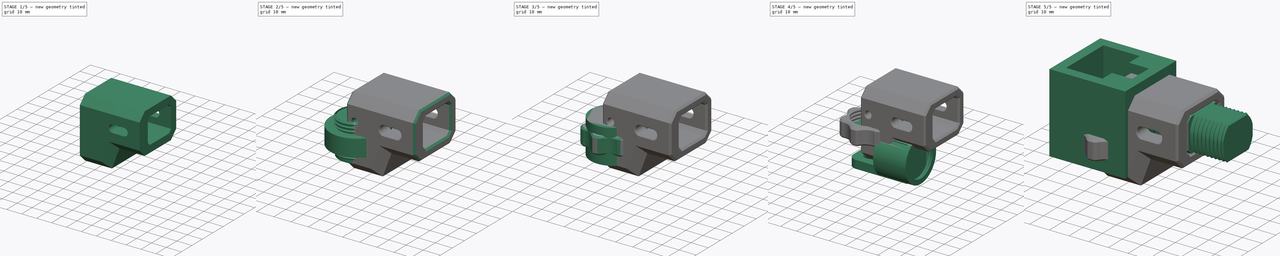
[diagram: build sequence overview — one tinted view per stage of 5, left to right]
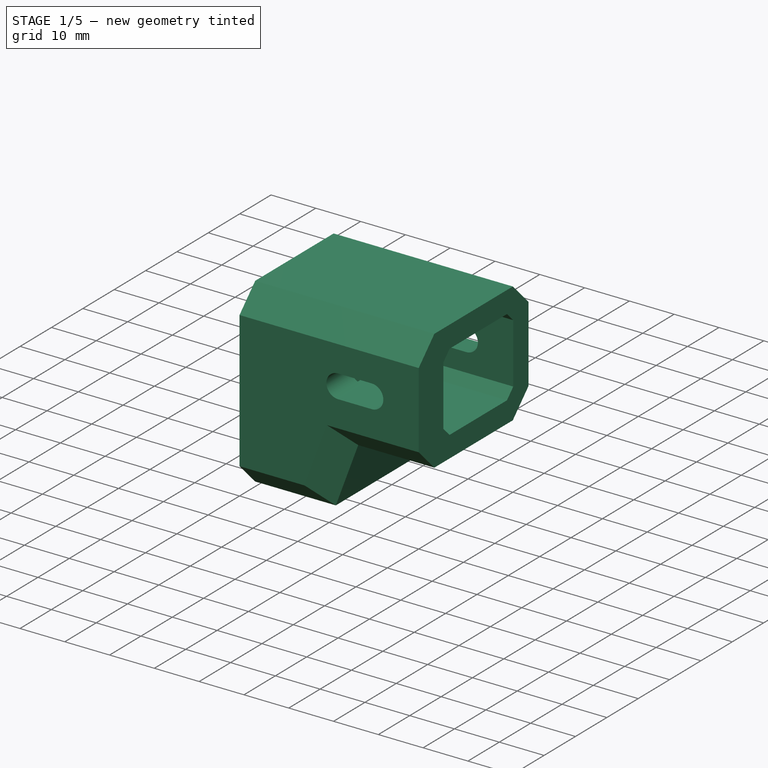
[diagram: stage 1 of 5 — iso view after this stage's code; geometry added in this stage tinted green]
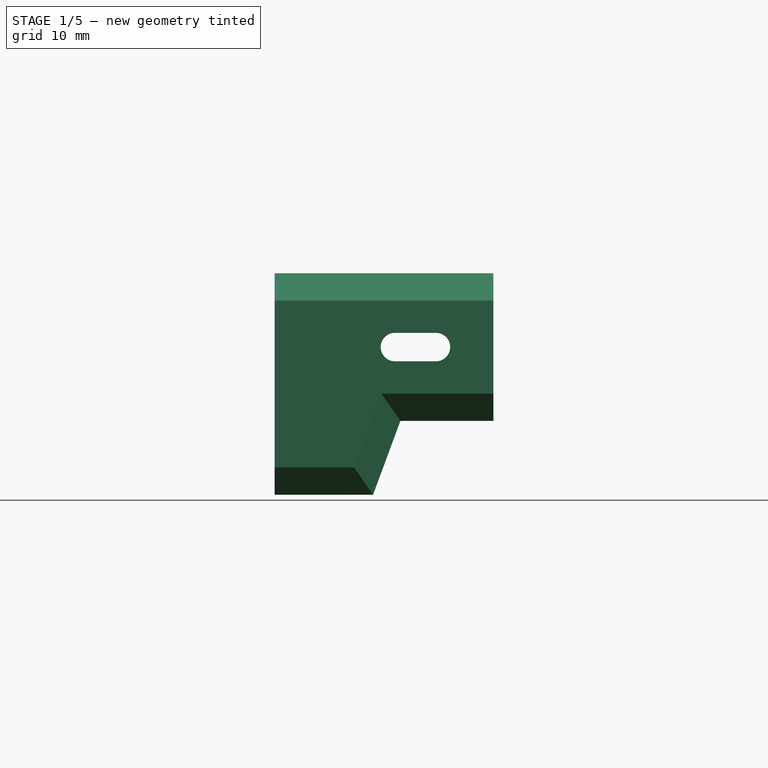
[diagram: stage 1 of 5 — front view after this stage's code; geometry added in this stage tinted green]
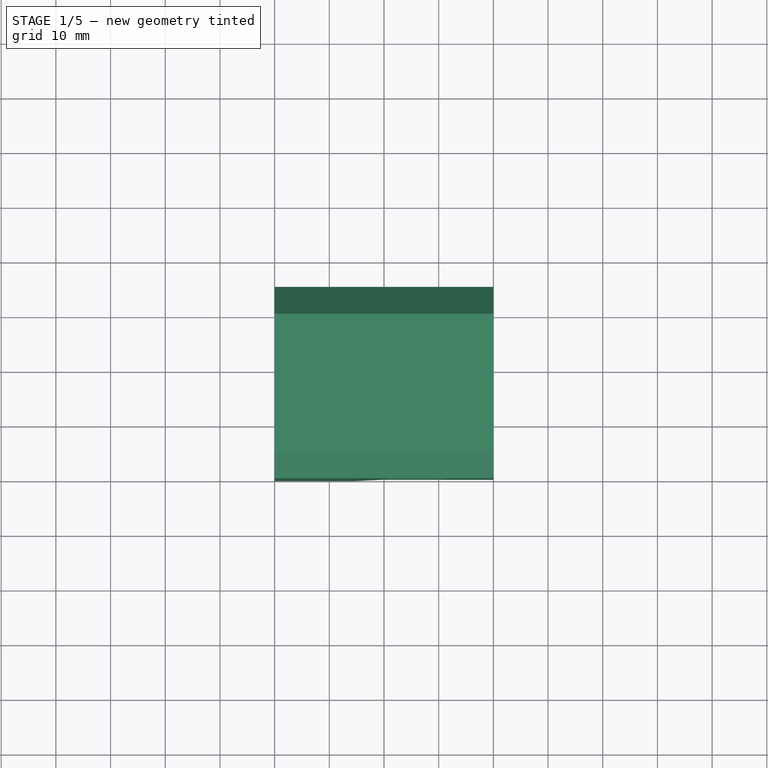
[diagram: stage 1 of 5 — top view after this stage's code; geometry added in this stage tinted green]
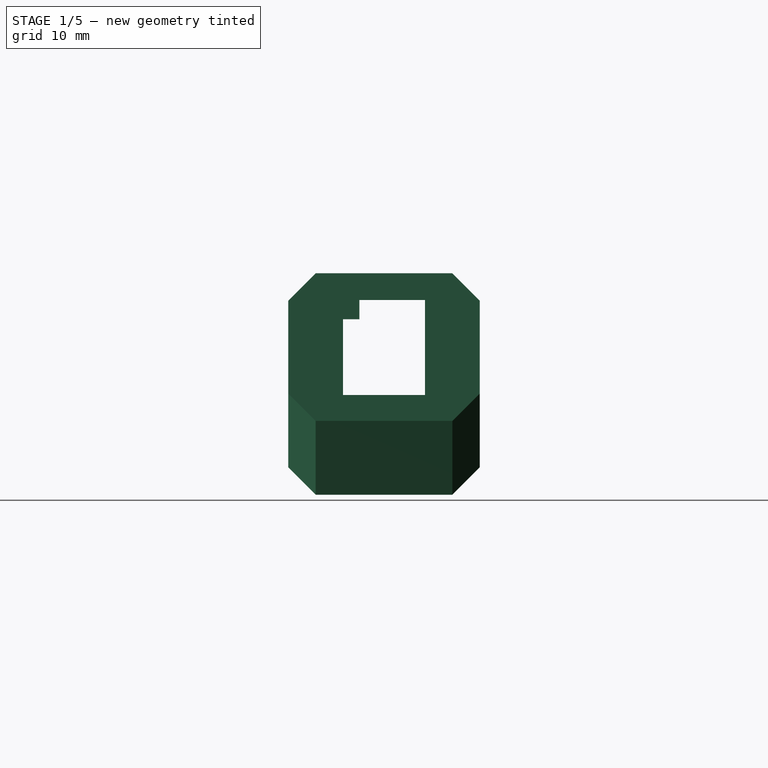
[diagram: stage 1 of 5 — right view after this stage's code; geometry added in this stage tinted green]
FCSTD DOCUMENT  (FreeCAD 0.19R24291 (Git))
Label: x-belt-tensioner
License: All rights reserved
LicenseURL: http://en.wikipedia.org/wiki/All_rights_reserved
objects: Sketcher::SketchObject×17, PartDesign::Chamfer×9, PartDesign::Pocket×8, PartDesign::Pad×7, PartDesign::Body×6, Part::Cylinder×4, Part::Cut×4, Part::Feature×3, PartDesign::ShapeBinder×2, PartDesign::AdditivePipe×2, App::Part×1, PartDesign::Fillet×1, PartDesign::Mirrored×1, Part::Helix×1, Part::MultiFuse×1, PartDesign::FeatureBase×1, PartDesign::PolarPattern×1
note: 95 computed .brp shape members not serialized (recipe doc carries the construction recipe); baked Part::Feature solids carry a one-line shape summary decoded from their .brp

FEATURE [Sketcher::SketchObject] Sketch006
  FullyConstrained = true
  MapMode = 5
  Placement = pos=(0,0,0) rot=(0.57735,0.57735,0.57735;2.0944rad)
  Support = -> [YZ_Plane003]
  sketch-geometry (14):
    g0: LineSegment StartX=-8.1 StartY=19.1 StartZ=0 EndX=0 EndY=19.1 EndZ=0
    g1: LineSegment StartX=25 StartY=35.5 StartZ=0 EndX=-10 EndY=35.5 EndZ=0
    g2: LineSegment StartX=-10 StartY=35.5 StartZ=0 EndX=-10 EndY=-5 EndZ=0
    g3: LineSegment StartX=-10 StartY=-5 StartZ=0 EndX=25 EndY=-5 EndZ=0
    g4: LineSegment StartX=-8.1 StartY=19.1 StartZ=0 EndX=-8.1 EndY=-0.2 EndZ=0
    g5: LineSegment StartX=15 StartY=30.6 StartZ=0 EndX=15 EndY=3.2 EndZ=0
    g6: LineSegment StartX=25 StartY=35.5 StartZ=0 EndX=25 EndY=-5 EndZ=0
    g7: LineSegment StartX=-8.1 StartY=-0.2 StartZ=0 EndX=10.15 EndY=-0.2 EndZ=0
    g8: LineSegment StartX=10.15 StartY=-0.2 StartZ=0 EndX=10.15 EndY=3.2 EndZ=0
    g9: LineSegment StartX=10.15 StartY=3.2 StartZ=0 EndX=15 EndY=3.2 EndZ=0
    g10: LineSegment StartX=0 StartY=19.1 StartZ=0 EndX=0 EndY=27.1 EndZ=0
    g11: LineSegment StartX=0 StartY=27.1 StartZ=0 EndX=3 EndY=27.1 EndZ=0
    g12: LineSegment StartX=3 StartY=27.1 StartZ=0 EndX=3 EndY=30.6 EndZ=0
    g13: LineSegment StartX=3 StartY=30.6 StartZ=0 EndX=15 EndY=30.6 EndZ=0
  constraints (42):
    c: Horizontal(g0)
    c: Horizontal(g1)
    c: Coincident(g1,g2)
    c: Vertical(g2)
    c: Coincident(g2,g3)
    c: DistanceX(g0,g-1) = 8.1
    c: DistanceY(g-1,g0) = 19.1
    c: DistanceY(g3,g-1) = 5
    c: Horizontal(g3)
    c: DistanceX(g1,g-1) = 10
    c: DistanceX(g-1,g1) = 25
    c: Coincident(g0,g4)
    c: Vertical(g4)
    c: Vertical(g5)
    c: Coincident(g6,g1)
    c: Coincident(g6,g3)
    c: Vertical(g6)
    c: DistanceY(g4,g-1) = 0.2
    c: Coincident(g4,g7)
    c: Horizontal(g7)
    c: Coincident(g7,g8)
    c: Coincident(g8,g9)
    c: Horizontal(g9)
    c: Coincident(g5,g9)
    c: Vertical(g8)
    c: DistanceX(g-1,g7) = 10.15
    c: DistanceY(g-1,g8) = 3.2
    c: Coincident(g0,g10)
    c: PointOnObject(g10,g-2)
    c: Vertical(g10)
    c: Coincident(g10,g11)
    c: Horizontal(g11)
    c: Coincident(g11,g12)
    c: Vertical(g12)
    c: Coincident(g13,g12)
    c: Coincident(g13,g5)
    c: Horizontal(g13)
    c: DistanceY(g-1,g1) = 35.5
    c: DistanceX(g11,g11) = 3
    c: DistanceX(g13,g13) = 12
    c: DistanceY(g-1,g10) = 27.1
    c: DistanceY(g12,g12) = 3.5
FEATURE [PartDesign::Pad] Pad002
  Direction = (1,1,1)
  Length = 13
  Length2 = 100
  Placement = pos=(0,0,0) rot=(0.57735,0.57735,0.57735;2.0944rad)
  Profile = -> Sketch006
  Type = 0
FEATURE [Sketcher::SketchObject] Sketch007
  ExternalGeometry = -> [Pad002]
  FullyConstrained = true
  MapMode = 5
  Placement = pos=(13,-2.9e-15,2.9e-15) rot=(0.57735,0.57735,0.57735;2.0944rad)
  Support = -> [Pad002]
  sketch-geometry (4):
    g0: LineSegment StartX=-8.1 StartY=19.1 StartZ=0 EndX=0 EndY=19.1 EndZ=0
    g1: LineSegment StartX=0 StartY=19.1 StartZ=0 EndX=0 EndY=-0.2 EndZ=0
    g2: LineSegment StartX=0 StartY=-0.2 StartZ=0 EndX=-8.1 EndY=-0.2 EndZ=0
    g3: LineSegment StartX=-8.1 StartY=-0.2 StartZ=0 EndX=-8.1 EndY=19.1 EndZ=0
  constraints (11):
    c: Coincident(g0,g1)
    c: Coincident(g1,g2)
    c: Coincident(g2,g3)
    c: Coincident(g3,g0)
    c: Horizontal(g0)
    c: Horizontal(g2)
    c: Vertical(g1)
    c: Vertical(g3)
    c: Coincident(g0,g-3)
    c: PointOnObject(g1,g-4)
    c: Vertical(g1,g-1)
FEATURE [PartDesign::Pad] Pad003
  BaseFeature = -> Pad002
  Direction = (1,1,1)
  Length = 6
  Length2 = 100
  Placement = pos=(0,0,0) rot=(0.57735,0.57735,0.57735;2.0944rad)
  Profile = -> Sketch007
  Reversed = true
  Type = 0
FEATURE [Sketcher::SketchObject] Sketch008
  ExternalGeometry = -> [Pad003]
  FullyConstrained = true
  MapMode = 5
  Placement = pos=(0,0,0) rot=(0.57735,0.57735,-0.57735;4.18879rad)
  Support = -> [Pad003]
  sketch-geometry (4):
    g0: LineSegment StartX=-8.1 StartY=0.2 StartZ=0 EndX=0 EndY=0.2 EndZ=0
    g1: LineSegment StartX=0 StartY=0.2 StartZ=0 EndX=0 EndY=-6.8 EndZ=0
    g2: LineSegment StartX=0 StartY=-6.8 StartZ=0 EndX=-8.1 EndY=-6.8 EndZ=0
    g3: LineSegment StartX=-8.1 StartY=-6.8 StartZ=0 EndX=-8.1 EndY=0.2 EndZ=0
  constraints (11):
    c: Coincident(g0,g1)
    c: Coincident(g1,g2)
    c: Coincident(g2,g3)
    c: Coincident(g3,g0)
    c: Horizontal(g0)
    c: Horizontal(g2)
    c: Vertical(g1)
    c: Vertical(g3)
    c: Coincident(g0,g-3)
    c: PointOnObject(g1,g-2)
    c: DistanceY(g3,g3) = 7
FEATURE [PartDesign::Pad] Pad004
  BaseFeature = -> Pad003
  Direction = (1,1,1)
  Length = 10
  Length2 = 100
  Placement = pos=(0,0,0) rot=(0.57735,0.57735,0.57735;2.0944rad)
  Profile = -> Sketch008
  Type = 3
  UpToFace = -> Pad003 [Face18]
FEATURE [Sketcher::SketchObject] Sketch009
  ExternalGeometry = -> [Pad004]
  FullyConstrained = true
  MapMode = 5
  Placement = pos=(13,-2.9e-15,2.9e-15) rot=(0.57735,0.57735,0.57735;2.0944rad)
  Support = -> [Pad004]
  sketch-geometry (8):
    g0: LineSegment StartX=-2.15 StartY=30.65 StartZ=0 EndX=20.15 EndY=30.65 EndZ=0
    g1: LineSegment StartX=20.15 StartY=30.65 StartZ=0 EndX=20.15 EndY=13.25 EndZ=0
    g2: LineSegment StartX=20.15 StartY=13.25 StartZ=0 EndX=-2.15 EndY=13.25 EndZ=0
    g3: LineSegment StartX=-2.15 StartY=13.25 StartZ=0 EndX=-2.15 EndY=30.65 EndZ=0
    g4: LineSegment StartX=-10 StartY=35.5 StartZ=0 EndX=25 EndY=35.5 EndZ=0
    g5: LineSegment StartX=25 StartY=35.5 StartZ=0 EndX=25 EndY=-5 EndZ=0
    g6: LineSegment StartX=25 StartY=-5 StartZ=0 EndX=-10 EndY=-5 EndZ=0
    g7: LineSegment StartX=-10 StartY=-5 StartZ=0 EndX=-10 EndY=35.5 EndZ=0
  constraints (22):
    c: Coincident(g0,g1)
    c: Coincident(g1,g2)
    c: Coincident(g2,g3)
    c: Coincident(g3,g0)
    c: Horizontal(g0)
    c: Horizontal(g2)
    c: Vertical(g1)
    c: Vertical(g3)
    c: DistanceX(g0,g-1) = 2.15
    c: DistanceX(g-1,g1) = 20.15
    c: DistanceY(g-1,g0) = 30.65
    c: DistanceY(g-1,g2) = 13.25
    c: Coincident(g4,g5)
    c: Coincident(g5,g6)
    c: Coincident(g6,g7)
    c: Coincident(g7,g4)
    c: Horizontal(g4)
    c: Horizontal(g6)
    c: Vertical(g5)
    c: Vertical(g7)
    c: Coincident(g4,g-4)
    c: Coincident(g5,g-5)
FEATURE [PartDesign::Pad] Pad005
  BaseFeature = -> Pad004
  Direction = (1,1,1)
  Length = 27
  Length2 = 100
  Placement = pos=(0,0,0) rot=(0.57735,0.57735,0.57735;2.0944rad)
  Profile = -> Sketch009
  Type = 0
FEATURE [Sketcher::SketchObject] Sketch011
  ExternalGeometry = -> [Pad005]
  FullyConstrained = true
  MapMode = 5
  Placement = pos=(-1e-14,-10,-1.1e-15) rot=(0.57735,0.57735,-0.57735;2.0944rad)
  Support = -> [Pad005]
  sketch-geometry (4):
    g0: LineSegment StartX=5 StartY=18 StartZ=0 EndX=-8.5 EndY=23 EndZ=0
    g1: LineSegment StartX=-8.5 StartY=23 StartZ=0 EndX=-8.5 EndY=40 EndZ=0
    g2: LineSegment StartX=-8.5 StartY=40 StartZ=0 EndX=5 EndY=40 EndZ=0
    g3: LineSegment StartX=5 StartY=40 StartZ=0 EndX=5 EndY=18 EndZ=0
  constraints (12):
    c: PointOnObject(g0,g-3)
    c: Coincident(g0,g1)
    c: PointOnObject(g1,g-4)
    c: Vertical(g1)
    c: Coincident(g1,g2)
    c: Coincident(g2,g-4)
    c: Coincident(g2,g3)
    c: Coincident(g3,g0)
    c: DistanceX(g-5,g-1) = 13.25
    c: DistanceX(g1,g-1) = 8.5
    c: DistanceY(g-3,g0) = 5
    c: DistanceY(g0,g0) = 5
FEATURE [PartDesign::Pocket] Pocket004
  BaseFeature = -> Pad005
  Length = 5
  Length2 = 100
  Placement = pos=(0,0,0) rot=(0.57735,0.57735,0.57735;2.0944rad)
  Profile = -> Sketch011
  Refine = true
  Type = 1
FEATURE [PartDesign::Chamfer] Chamfer
  Angle = 45
  Base = -> Pocket004 [Edge55,Edge12,Edge9,Edge52,Edge13,Edge10,Edge50,Edge51]
  BaseFeature = -> Pocket004
  ChamferType = 0
  FlipDirection = false
  Placement = pos=(0,0,0) rot=(0.57735,0.57735,0.57735;2.0944rad)
  Size = 5
  Size2 = 1
  SupportTransform = false
FEATURE [PartDesign::Chamfer] Chamfer001
  Angle = 45
  Base = -> Chamfer [Edge34,Edge40,Edge36,Edge33]
  BaseFeature = -> Chamfer
  ChamferType = 0
  FlipDirection = false
  Placement = pos=(0,0,0) rot=(0.57735,0.57735,0.57735;2.0944rad)
  Size = 2
  Size2 = 1
  SupportTransform = false
FEATURE [Sketcher::SketchObject] Sketch012
  FullyConstrained = true
  MapMode = 5
  Placement = pos=(-1.34e-14,-10,3.5e-15) rot=(-0.57735,-0.57735,0.57735;4.18879rad)
  Support = -> [Chamfer001]
  sketch-geometry (4):
    g0: ArcOfCircle CenterX=-22 CenterY=22 CenterZ=0 NormalX=0 NormalY=0 NormalZ=1 AngleXU=0 Radius=2.6 StartAngle=3.14159 EndAngle=6.28319
    g1: ArcOfCircle CenterX=-22 CenterY=29.5 CenterZ=0 NormalX=0 NormalY=0 NormalZ=1 AngleXU=0 Radius=2.6 StartAngle=0 EndAngle=3.14159
    g2: LineSegment StartX=-19.4 StartY=22 StartZ=0 EndX=-19.4 EndY=29.5 EndZ=0
    g3: LineSegment StartX=-24.6 StartY=22 StartZ=0 EndX=-24.6 EndY=29.5 EndZ=0
  constraints (10):
    c: Tangent(g0,g3) = 1.5708
    c: Tangent(g0,g2) = -1.5708
    c: Tangent(g2,g1) = -1.5708
    c: Tangent(g3,g1) = 1.5708
    c: Vertical(g2)
    c: Equal(g0,g1)
    c: Radius(g0) = 2.6
    c: DistanceY(g0,g1) = 7.5
    c: DistanceY(g-1,g0) = 22
    c: DistanceX(g0,g-1) = 22
FEATURE [PartDesign::Pocket] Pocket005
  BaseFeature = -> Chamfer001
  Length = 5
  Length2 = 100
  Placement = pos=(0,0,0) rot=(0.57735,0.57735,0.57735;2.0944rad)
  Profile = -> Sketch012
  Type = 1
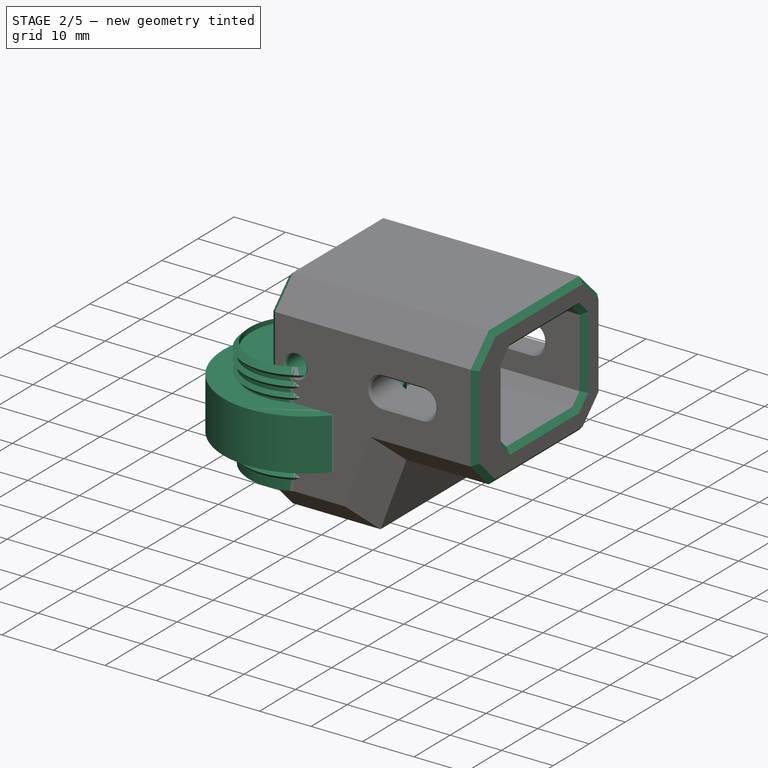
[diagram: stage 2 of 5 — iso view after this stage's code; geometry added in this stage tinted green]
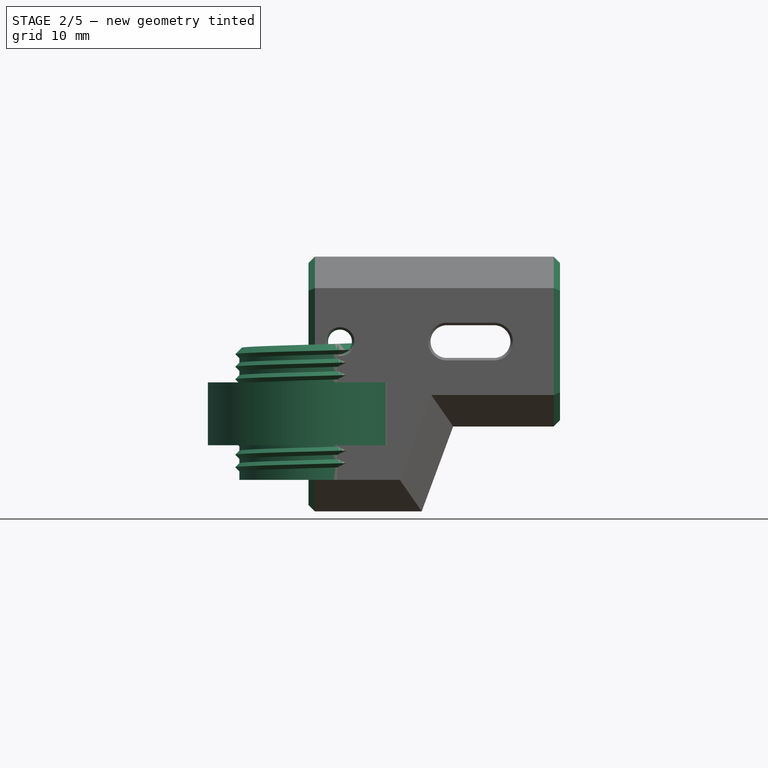
[diagram: stage 2 of 5 — front view after this stage's code; geometry added in this stage tinted green]
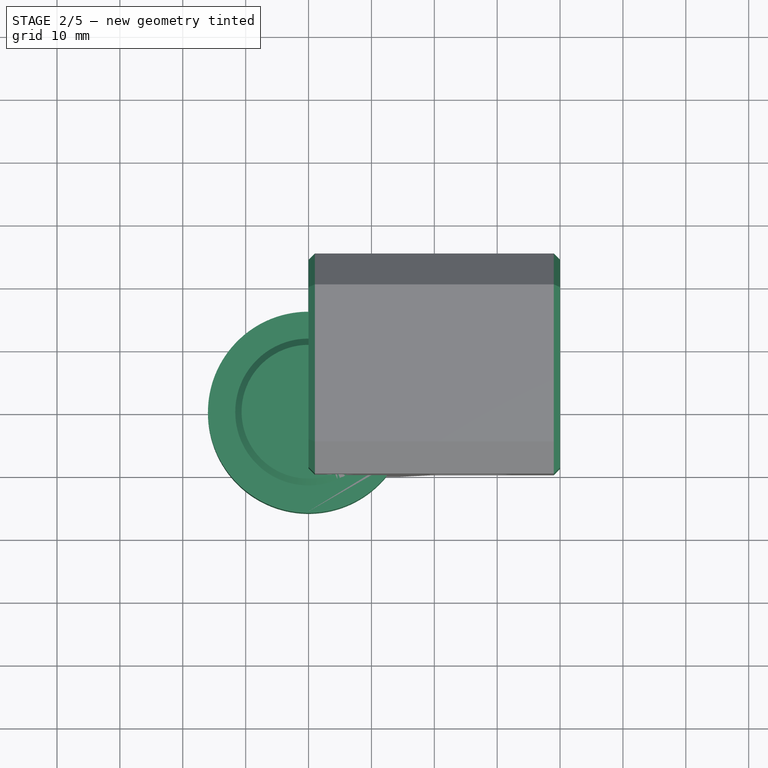
[diagram: stage 2 of 5 — top view after this stage's code; geometry added in this stage tinted green]
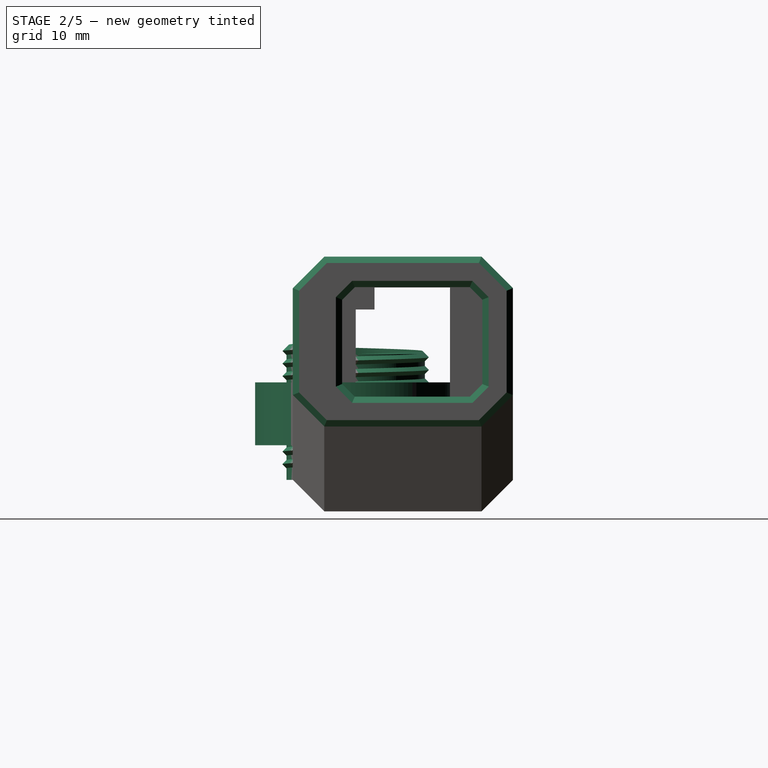
[diagram: stage 2 of 5 — right view after this stage's code; geometry added in this stage tinted green]
FEATURE [PartDesign::Chamfer] Chamfer002
  Angle = 45
  Base = -> Pocket005 [Edge43,Edge90,Edge91,Edge89,Edge64,Edge62,Edge58,Edge54,Face1]
  BaseFeature = -> Pocket005
  ChamferType = 0
  FlipDirection = false
  Placement = pos=(0,0,0) rot=(0.57735,0.57735,0.57735;2.0944rad)
  Size = 1
  Size2 = 1
  SupportTransform = false
FEATURE [PartDesign::Chamfer] Chamfer003
  Angle = 45
  Base = -> Chamfer002 [Edge83,Edge99,Edge71,Edge55]
  BaseFeature = -> Chamfer002
  ChamferType = 0
  FlipDirection = false
  Placement = pos=(0,0,0) rot=(0.57735,0.57735,0.57735;2.0944rad)
  Size = 0.4
  Size2 = 1
  SupportTransform = false
FEATURE [Sketcher::SketchObject] Sketch015
  FullyConstrained = true
  MapMode = 5
  Placement = pos=(0,0,0) rot=(1,0,0;1.5708rad)
  Support = -> [XZ_Plane005]
  sketch-geometry (3):
    g0: LineSegment StartX=10.65 StartY=0 StartZ=0 EndX=10.65 EndY=2 EndZ=0
    g1: LineSegment StartX=10.65 StartY=2 StartZ=0 EndX=11.65 EndY=1 EndZ=0
    g2: LineSegment StartX=11.65 StartY=1 StartZ=0 EndX=10.65 EndY=-1e-16 EndZ=0
  constraints (9):
    c: PointOnObject(g0,g-1)
    c: Vertical(g0)
    c: Coincident(g0,g1)
    c: Coincident(g1,g2)
    c: Coincident(g2,g0)
    c: Equal(g1,g2)
    c: DistanceY(g0,g0) = 2
    c: DistanceX(g0,g1) = 1
    c: DistanceX(g-1,g0) = 10.65
FEATURE [PartDesign::ShapeBinder] CopyHelix001
  TraceSupport = false
FEATURE [PartDesign::AdditivePipe] AdditivePipe001
  AuxilleryCurvelinear = true
  AuxillerySpineTangent = false
  Binormal = (0,0,0)
  Mode = 2
  Placement = pos=(0,0,0) rot=(1,0,0;1.5708rad)
  Profile = -> Sketch015
  Spine = -> CopyHelix001
  SpineTangent = false
  Transformation = 0
  Transition = 0
FEATURE [PartDesign::Body] Body001004002
  Group = -> [Sketch015,AdditivePipe001,CopyHelix001]
  Origin = -> Origin005
  Tip = -> AdditivePipe001
FEATURE [Part::Cylinder] Cylinder002
  Angle = 360
  AttacherType = Attacher::AttachEngine3D
  Height = 20
  Radius = 11
FEATURE [Part::MultiFuse] Fusion
  Shapes = -> [Body001004002,Cylinder002]
FEATURE [Part::Cylinder] Cylinder003
  Angle = 360
  AttacherType = Attacher::AttachEngine3D
  Height = 10
  Placement = pos=(0,0,5.5) rot=(0,0,1;0rad)
  Radius = 16
FEATURE [PartDesign::Body] Body001004003  label="nut"
  BaseFeature = -> Cut003
  Group = -> [BaseFeature,Sketch016,Pocket006,PolarPattern,Chamfer007]
  Origin = -> Origin006
  Tip = -> Chamfer007
FEATURE [Sketcher::SketchObject] Sketch017
  FullyConstrained = true
  MapMode = 5
  Placement = pos=(-1.34e-14,-10,3.5e-15) rot=(-0.57735,-0.57735,0.57735;4.18879rad)
  Support = -> [Chamfer003]
  sketch-geometry (1):
    g0: Circle CenterX=-22 CenterY=5 CenterZ=0 NormalX=0 NormalY=0 NormalZ=1 AngleXU=0 Radius=1.9
  constraints (3):
    c: DistanceX(g0,g-1) = 22
    c: DistanceY(g-1,g0) = 5
    c: Radius(g0) = 1.9
FEATURE [PartDesign::Pocket] Pocket007
  BaseFeature = -> Chamfer003
  Length = 5
  Length2 = 100
  Placement = pos=(0,0,0) rot=(0.57735,0.57735,0.57735;2.0944rad)
  Profile = -> Sketch017
  Type = 1
FEATURE [PartDesign::Chamfer] Chamfer008
  Angle = 45
  Base = -> Pocket007 [Edge146,Edge75,Edge94,Edge158]
  BaseFeature = -> Pocket007
  ChamferType = 0
  FlipDirection = false
  Placement = pos=(0,0,0) rot=(0.57735,0.57735,0.57735;2.0944rad)
  Size = 0.4
  Size2 = 1
  SupportTransform = false
FEATURE [PartDesign::Body] Body001003  label="tensioner-main-body"
  Group = -> [Sketch006,Pad002,Sketch007,Pad003,Sketch008,Pad004,Sketch009,Pad005,Sketch011,Pocket004,Chamfer,Chamfer001,Sketch012,Pocket005,Chamfer002,Chamfer003,Sketch017,Pocket007,Chamfer008]
  Origin = -> Origin003
  Tip = -> Chamfer008
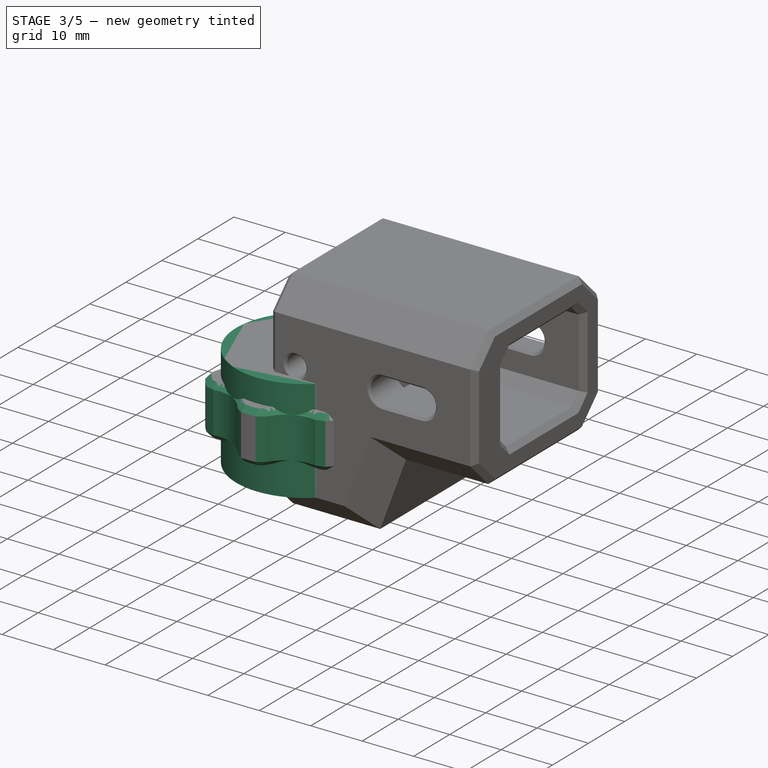
[diagram: stage 3 of 5 — iso view after this stage's code; geometry added in this stage tinted green]
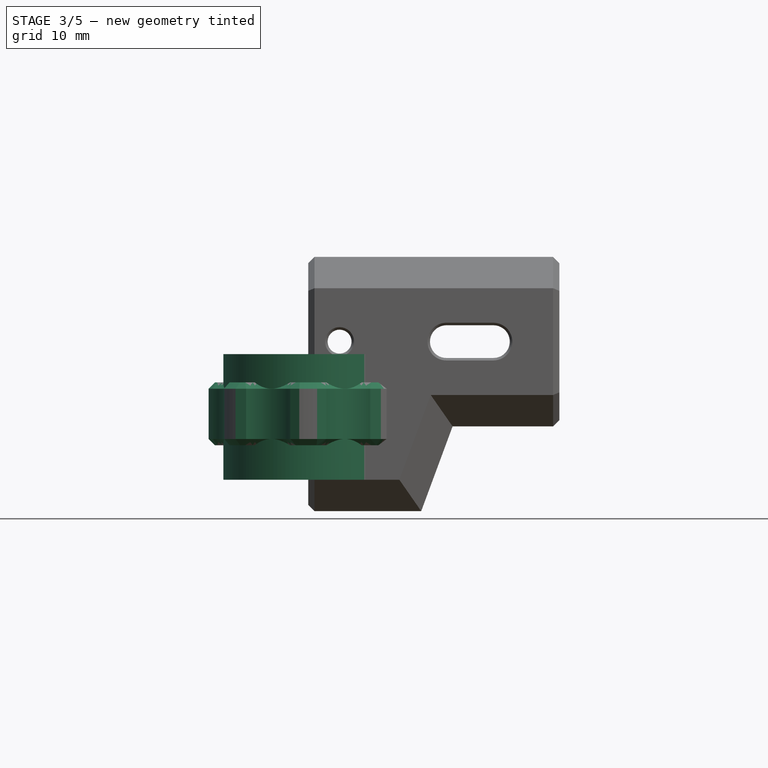
[diagram: stage 3 of 5 — front view after this stage's code; geometry added in this stage tinted green]
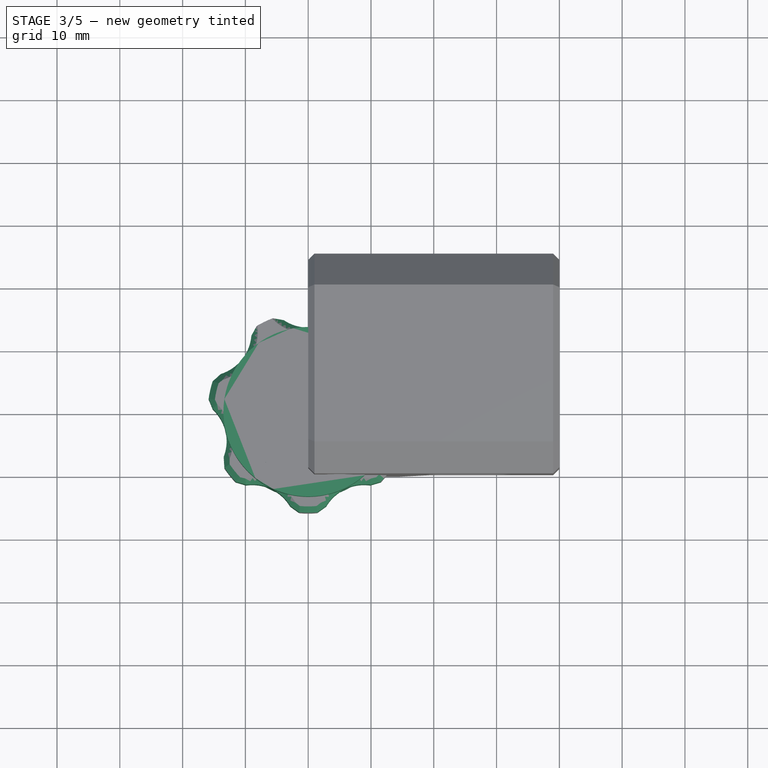
[diagram: stage 3 of 5 — top view after this stage's code; geometry added in this stage tinted green]
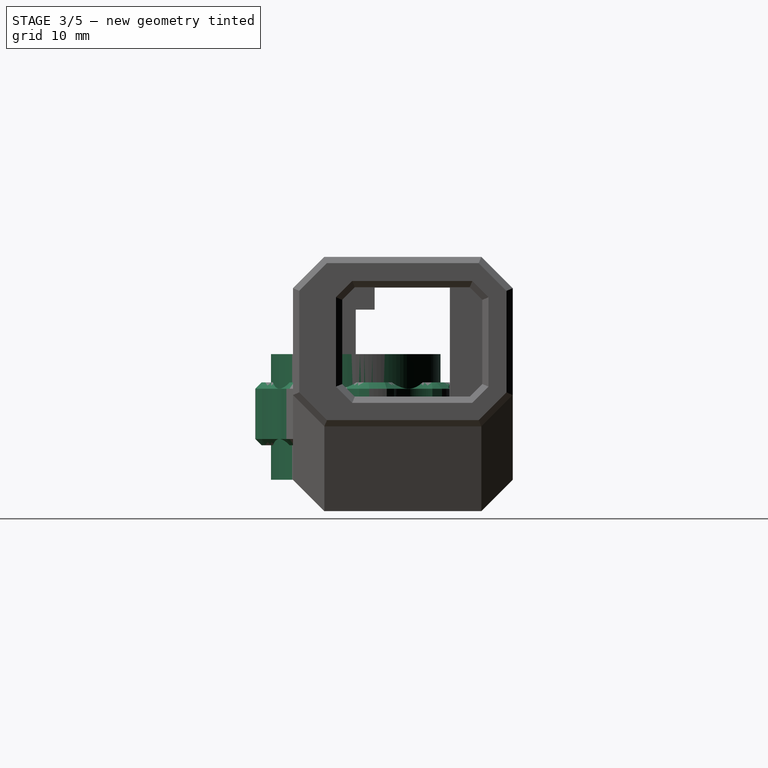
[diagram: stage 3 of 5 — right view after this stage's code; geometry added in this stage tinted green]
FEATURE [PartDesign::Body] Body001002  label="idler-housing"
  Group = -> [Sketch003,Pad001,Sketch004,Pocket002,Sketch005,Pocket003,Fillet,Sketch013,Pad006,Mirrored,Chamfer004,Chamfer005,Chamfer006]
  Origin = -> Origin001
  Placement = pos=(0,0,0) rot=(-1,0,0;1.5708rad)
  Tip = -> Chamfer006
FEATURE [Part::Helix] Helix
  Angle = 0
  AttacherType = Attacher::AttachEngine3D
  Height = 20
  LocalCoord = 0
  Pitch = 2
  Radius = 11
  Style = 1
FEATURE [Sketcher::SketchObject] Sketch014
  FullyConstrained = true
  MapMode = 5
  Placement = pos=(0,0,0) rot=(1,0,0;1.5708rad)
  Support = -> [XZ_Plane004]
  sketch-geometry (3):
    g0: LineSegment StartX=10.4 StartY=0 StartZ=0 EndX=10.4 EndY=2 EndZ=0
    g1: LineSegment StartX=10.4 StartY=2 StartZ=0 EndX=11.4 EndY=1 EndZ=0
    g2: LineSegment StartX=11.4 StartY=1 StartZ=0 EndX=10.4 EndY=0 EndZ=0
  constraints (9):
    c: PointOnObject(g0,g-1)
    c: Vertical(g0)
    c: Coincident(g0,g1)
    c: Coincident(g1,g2)
    c: Coincident(g2,g0)
    c: DistanceY(g0,g0) = 2
    c: Equal(g1,g2)
    c: DistanceX(g0,g1) = 1
    c: DistanceX(g-1,g0) = 10.4
FEATURE [Part::Cylinder] Cylinder
  Angle = 360
  AttacherType = Attacher::AttachEngine3D
  Height = 20
  Radius = 10.5
FEATURE [Part::Cylinder] Cylinder001
  Angle = 360
  AttacherType = Attacher::AttachEngine3D
  Height = 20
  Radius = 13.5
FEATURE [Part::Cut] Cut003
  Base = -> Cylinder003
  Tool = -> Fusion
FEATURE [PartDesign::FeatureBase] BaseFeature
  BaseFeature = -> Cut003
FEATURE [Sketcher::SketchObject] Sketch016
  FullyConstrained = true
  MapMode = 5
  Support = -> [XY_Plane006]
  sketch-geometry (1):
    g0: Circle CenterX=0 CenterY=20.5 CenterZ=0 NormalX=0 NormalY=0 NormalZ=1 AngleXU=0 Radius=7
  constraints (3):
    c: PointOnObject(g0,g-2)
    c: Radius(g0) = 7
    c: DistanceY(g-1,g0) = 20.5
FEATURE [PartDesign::Pocket] Pocket006
  BaseFeature = -> BaseFeature
  Length = 5
  Length2 = 100
  Profile = -> Sketch016
  Reversed = true
  Type = 1
FEATURE [PartDesign::PolarPattern] PolarPattern
  Angle = 360
  Axis = -> Sketch016 [N_Axis]
  BaseFeature = -> Pocket006
  Occurrences = 7
  Originals = -> [Pocket006]
FEATURE [PartDesign::Chamfer] Chamfer007
  Angle = 45
  Base = -> PolarPattern [Face15,Face14,Face4,Face1,Face2,Face6,Face13,Face12,Face11,Edge45,Face9,Face8,Face7,Face16]
  BaseFeature = -> PolarPattern
  ChamferType = 0
  FlipDirection = false
  Size = 1
  Size2 = 1
  SupportTransform = false
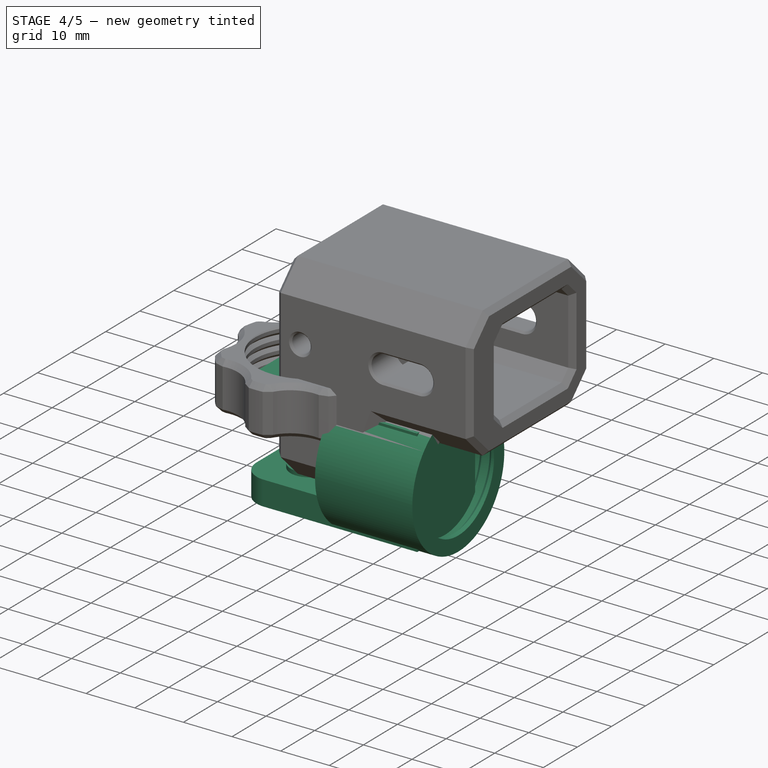
[diagram: stage 4 of 5 — iso view after this stage's code; geometry added in this stage tinted green]
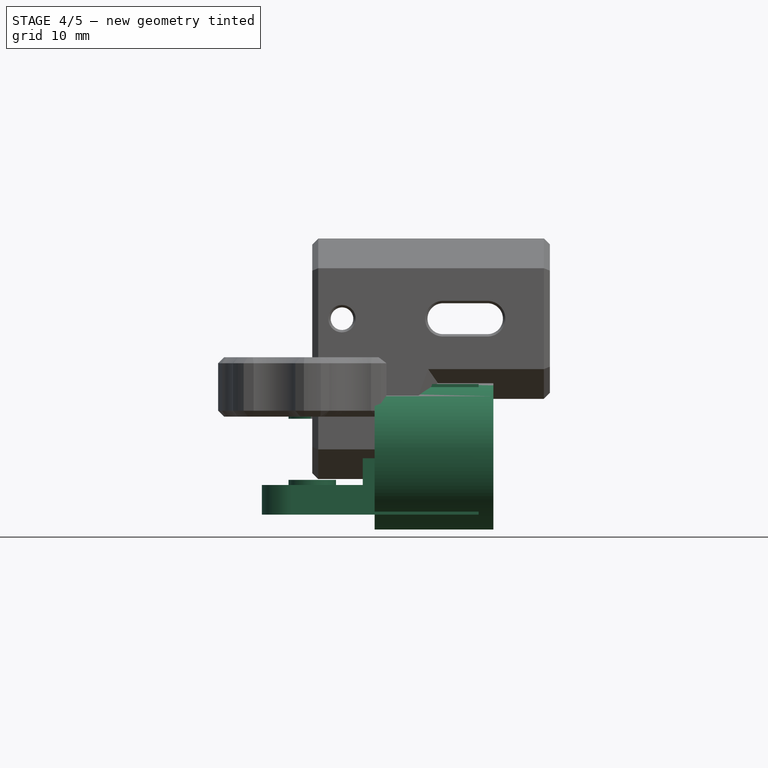
[diagram: stage 4 of 5 — front view after this stage's code; geometry added in this stage tinted green]
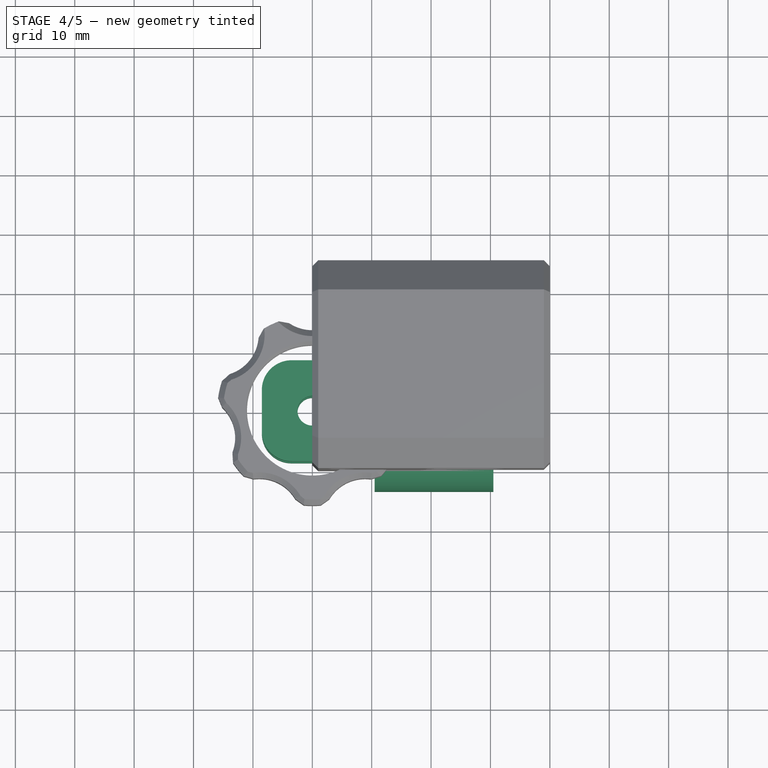
[diagram: stage 4 of 5 — top view after this stage's code; geometry added in this stage tinted green]
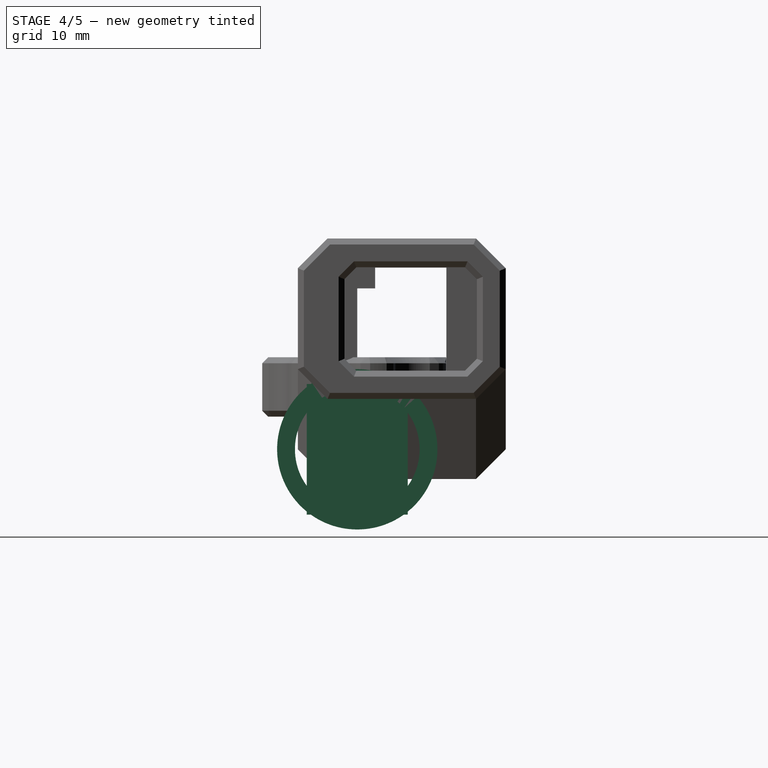
[diagram: stage 4 of 5 — right view after this stage's code; geometry added in this stage tinted green]
FEATURE [PartDesign::Body] Body
  Group = -> [Sketch,Pad,Sketch001,Pocket,Sketch002,Pocket001]
  Origin = -> Origin
  Tip = -> Pocket001
FEATURE [Part::Feature] Body001001  label="PREF"
  shape: bbox 50 x 18 x 27 mm, 16 faces (baked)
FEATURE [Part::Feature] PolarPattern002  label="idler"
  Placement = pos=(59,4,22) rot=(0,0,1;0rad)
  shape: bbox 15 x 10 x 15 mm, 47 faces (baked)
FEATURE [Sketcher::SketchObject] Sketch003
  FullyConstrained = true
  MapMode = 5
  Support = -> [XY_Plane001]
  sketch-geometry (5):
    g0: LineSegment StartX=-8.5 StartY=8.5 StartZ=0 EndX=28 EndY=8.5 EndZ=0
    g1: LineSegment StartX=28 StartY=8.5 StartZ=0 EndX=28 EndY=-8.5 EndZ=0
    g2: LineSegment StartX=28 StartY=-8.5 StartZ=0 EndX=-8.5 EndY=-8.5 EndZ=0
    g3: LineSegment StartX=-8.5 StartY=-8.5 StartZ=0 EndX=-8.5 EndY=8.5 EndZ=0
    g4: Circle CenterX=0 CenterY=0 CenterZ=0 NormalX=0 NormalY=0 NormalZ=1 AngleXU=0 Radius=8
  constraints (14):
    c: Coincident(g0,g1)
    c: Coincident(g1,g2)
    c: Coincident(g2,g3)
    c: Coincident(g3,g0)
    c: Horizontal(g0)
    c: Horizontal(g2)
    c: Vertical(g1)
    c: Vertical(g3)
    c: Coincident(g4,g-1)
    c: Radius(g4) = 8
    c: DistanceY(g3,g3) = 17
    c: DistanceY(g-1,g0) = 8.5
    c: DistanceX(g0,g-1) = 8.5
    c: DistanceX(g-1,g0) = 28
FEATURE [PartDesign::Pad] Pad001
  Direction = (1,1,1)
  Length = 22
  Length2 = 100
  Midplane = true
  Profile = -> Sketch003
  Type = 0
FEATURE [Sketcher::SketchObject] Sketch004
  ExternalGeometry = -> [Pad001]
  FullyConstrained = true
  MapMode = 5
  Support = -> [XY_Plane001]
  sketch-geometry (4):
    g0: LineSegment StartX=-8.5 StartY=8.5 StartZ=0 EndX=8.5 EndY=8.5 EndZ=0
    g1: LineSegment StartX=8.5 StartY=8.5 StartZ=0 EndX=8.5 EndY=-8.5 EndZ=0
    g2: LineSegment StartX=8.5 StartY=-8.5 StartZ=0 EndX=-8.5 EndY=-8.5 EndZ=0
    g3: LineSegment StartX=-8.5 StartY=-8.5 StartZ=0 EndX=-8.5 EndY=8.5 EndZ=0
  constraints (11):
    c: Coincident(g0,g1)
    c: Coincident(g1,g2)
    c: Coincident(g2,g3)
    c: Coincident(g3,g0)
    c: Horizontal(g0)
    c: Horizontal(g2)
    c: Vertical(g1)
    c: Vertical(g3)
    c: Coincident(g0,g-3)
    c: PointOnObject(g1,g-4)
    c: DistanceX(g0,g0) = 17
FEATURE [PartDesign::Pocket] Pocket002
  BaseFeature = -> Pad001
  Length = 12
  Length2 = 100
  Midplane = true
  Profile = -> Sketch004
  Type = 0
FEATURE [App::Part] Part
  Group = -> [PolarPattern002,Body001001]
  Origin = -> Origin002
  Placement = pos=(-37,0,0) rot=(0,0,1;0rad)
FEATURE [Sketcher::SketchObject] Sketch005
  FullyConstrained = true
  MapMode = 5
  Placement = pos=(0,0,11) rot=(0,0,1;0rad)
  Support = -> [Pocket002]
  sketch-geometry (1):
    g0: Circle CenterX=0 CenterY=0 CenterZ=0 NormalX=0 NormalY=0 NormalZ=1 AngleXU=0 Radius=2.5
  constraints (2):
    c: Coincident(g0,g-1)
    c: Radius(g0) = 2.5
FEATURE [PartDesign::Pocket] Pocket003
  BaseFeature = -> Pocket002
  Length = 5
  Length2 = 100
  Profile = -> Sketch005
  Type = 1
FEATURE [PartDesign::Fillet] Fillet
  Base = -> Pocket003 [Edge8,Edge28,Edge4,Edge19]
  BaseFeature = -> Pocket003
  Radius = 5
  SupportTransform = false
FEATURE [Sketcher::SketchObject] Sketch013
  ExternalGeometry = -> [Fillet]
  FullyConstrained = true
  MapMode = 5
  Placement = pos=(0,0,6) rot=(1,0,0;3.14159rad)
  Support = -> [Fillet]
  sketch-geometry (2):
    g0: Circle CenterX=0 CenterY=0 CenterZ=0 NormalX=0 NormalY=0 NormalZ=1 AngleXU=0 Radius=4
    g1: Circle CenterX=0 CenterY=0 CenterZ=0 NormalX=0 NormalY=0 NormalZ=1 AngleXU=0 Radius=2.5
  constraints (4):
    c: Coincident(g0,g-1)
    c: Coincident(g1,g0)
    c: Radius(g1) = 2.5
    c: Radius(g0) = 4
FEATURE [PartDesign::Pad] Pad006
  BaseFeature = -> Fillet
  Direction = (1,1,1)
  Length = 0.85
  Length2 = 100
  Profile = -> Sketch013
  Type = 0
FEATURE [PartDesign::Mirrored] Mirrored
  BaseFeature = -> Pad006
  MirrorPlane = -> XY_Plane001
  Originals = -> [Pad006]
FEATURE [PartDesign::Body] Body001004
  Group = -> [Sketch014,AdditivePipe,CopyHelix]
  Origin = -> Origin004
  Tip = -> AdditivePipe
FEATURE [Part::Feature] Body001004001
  shape: bbox 23.19 x 23.58 x 22 mm, 32 faces (baked)
FEATURE [Part::Cut] Cut
  Base = -> Cylinder001
  Tool = -> Cylinder
FEATURE [Part::Cut] Cut001
  Base = -> Cut
  Placement = pos=(30.5,0,7e-15) rot=(0,-1,0;1.5708rad)
  Tool = -> Body001004001
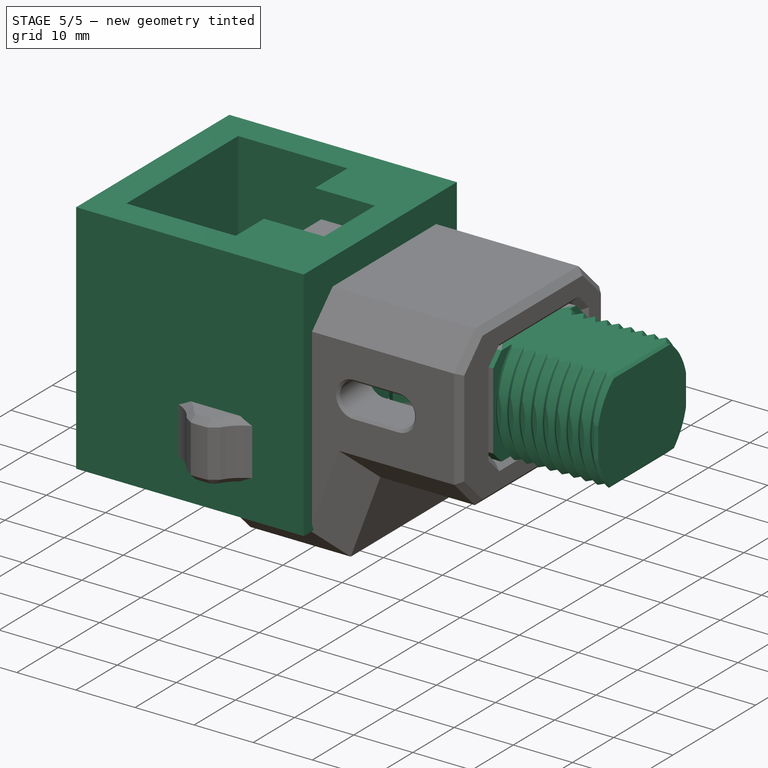
[diagram: stage 5 of 5 — iso view after this stage's code; geometry added in this stage tinted green]
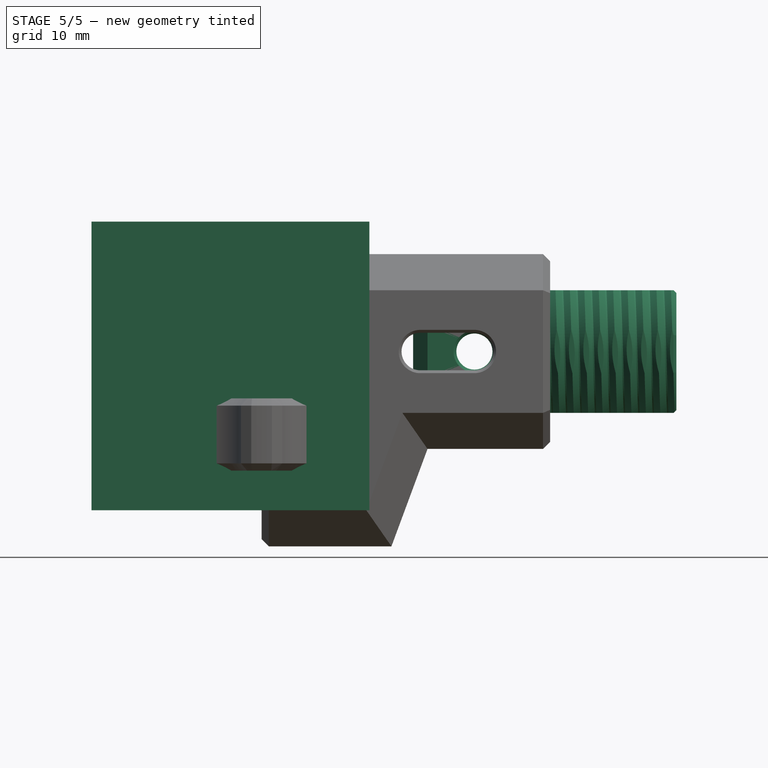
[diagram: stage 5 of 5 — front view after this stage's code; geometry added in this stage tinted green]
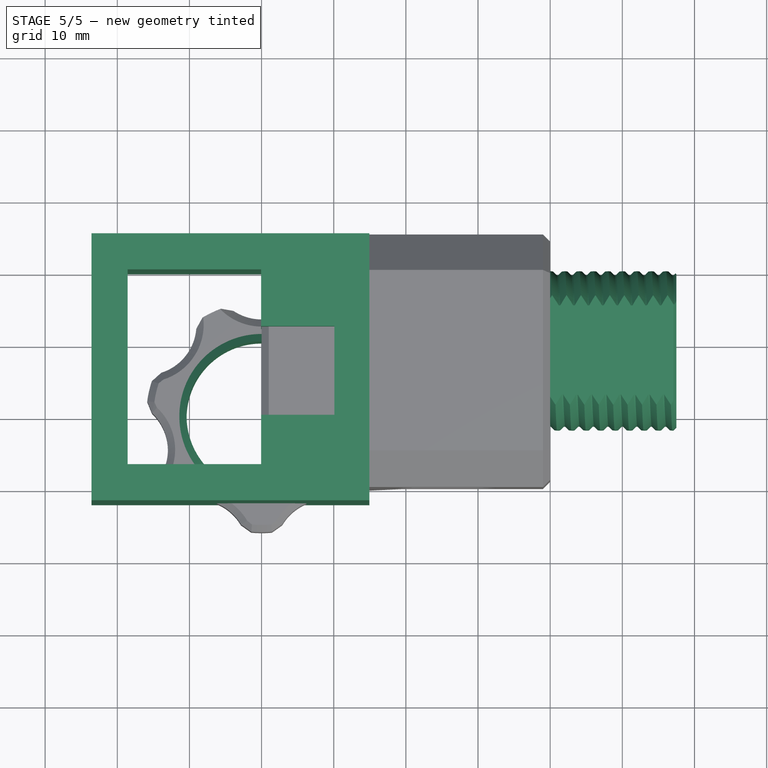
[diagram: stage 5 of 5 — top view after this stage's code; geometry added in this stage tinted green]
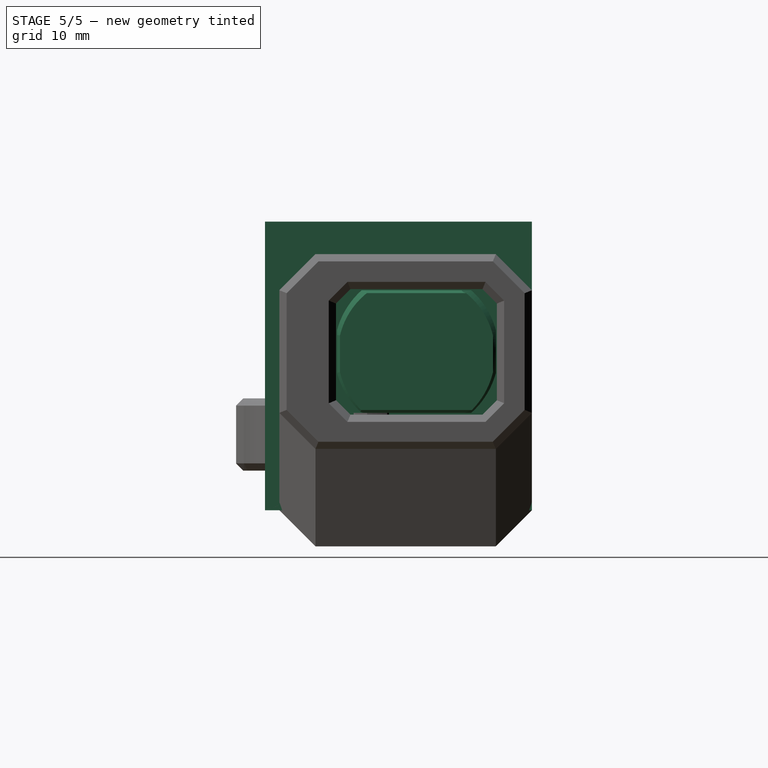
[diagram: stage 5 of 5 — right view after this stage's code; geometry added in this stage tinted green]
FEATURE [Sketcher::SketchObject] Sketch
  FullyConstrained = false
  MapMode = 5
  Support = -> [XY_Plane]
  sketch-geometry (12):
    g0: LineSegment StartX=9.93367 StartY=0 StartZ=0 EndX=9.93367 EndY=12 EndZ=0
    g1: LineSegment StartX=9.93367 StartY=12 StartZ=0 EndX=-0.066334 EndY=12 EndZ=0
    g2: LineSegment StartX=-0.066334 StartY=12 StartZ=0 EndX=-0.066334 EndY=20 EndZ=0
    g3: LineSegment StartX=-0.066334 StartY=20 StartZ=0 EndX=-18.5663 EndY=20 EndZ=0
    g4: LineSegment StartX=-18.5663 StartY=20 StartZ=0 EndX=-18.5663 EndY=-7 EndZ=0
    g5: LineSegment StartX=-18.5663 StartY=-7 StartZ=0 EndX=-0.066334 EndY=-7 EndZ=0
    g6: LineSegment StartX=-0.066334 StartY=-7 StartZ=0 EndX=-0.066334 EndY=0 EndZ=0
    g7: LineSegment StartX=-0.066334 StartY=0 StartZ=0 EndX=9.93367 EndY=0 EndZ=0
    g8: LineSegment StartX=-23.5663 StartY=25 StartZ=0 EndX=14.9337 EndY=25 EndZ=0
    g9: LineSegment StartX=14.9337 StartY=25 StartZ=0 EndX=14.9337 EndY=-12 EndZ=0
    g10: LineSegment StartX=14.9337 StartY=-12 StartZ=0 EndX=-23.5663 EndY=-12 EndZ=0
    g11: LineSegment StartX=-23.5663 StartY=-12 StartZ=0 EndX=-23.5663 EndY=25 EndZ=0
  constraints (35):
    c: PointOnObject(g0,g-1)
    c: Vertical(g0)
    c: Coincident(g0,g1)
    c: Horizontal(g1)
    c: Coincident(g1,g2)
    c: Vertical(g2)
    c: Coincident(g2,g3)
    c: Horizontal(g3)
    c: Coincident(g3,g4)
    c: Vertical(g4)
    c: Coincident(g4,g5)
    c: Horizontal(g5)
    c: Coincident(g5,g6)
    c: PointOnObject(g6,g-1)
    c: Vertical(g6)
    c: Coincident(g6,g7)
    c: Coincident(g7,g0)
    c: Vertical(g6,g1)
    c: DistanceX(g1,g1) = 10
    c: DistanceY(g0,g0) = 12
    c: DistanceY(g2,g2) = 8
    c: DistanceY(g6,g6) = 7
    c: DistanceX(g5,g5) = 18.5
    c: Coincident(g8,g9)
    c: Coincident(g9,g10)
    c: Coincident(g10,g11)
    c: Coincident(g11,g8)
    c: Horizontal(g8)
    c: Horizontal(g10)
    c: Vertical(g9)
    c: Vertical(g11)
    c: DistanceX(g10,g4) = 5
    c: DistanceX(g0,g9) = 5
    c: DistanceY(g3,g8) = 5
    c: DistanceY(g10,g4) = 5
FEATURE [PartDesign::Pad] Pad
  Direction = (1,1,1)
  Length = 40
  Length2 = 100
  Profile = -> Sketch
  Type = 0
FEATURE [Sketcher::SketchObject] Sketch001
  ExternalGeometry = -> [Pad]
  FullyConstrained = true
  MapMode = 5
  Placement = pos=(14.9337,0,0) rot=(0.57735,0.57735,0.57735;2.0944rad)
  Support = -> [Pad]
  sketch-geometry (1):
    g0: Circle CenterX=15 CenterY=8 CenterZ=0 NormalX=0 NormalY=0 NormalZ=1 AngleXU=0 Radius=2
  constraints (3):
    c: DistanceY(g-3,g0) = 8
    c: DistanceX(g-3,g0) = 3
    c: Radius(g0) = 2
FEATURE [PartDesign::Pocket] Pocket
  BaseFeature = -> Pad
  Length = 5
  Length2 = 100
  Profile = -> Sketch001
  Type = 2
FEATURE [Sketcher::SketchObject] Sketch002
  ExternalGeometry = -> [Pocket]
  FullyConstrained = true
  MapMode = 5
  Placement = pos=(0,0,40) rot=(0,0,1;0rad)
  Support = -> [Pocket]
  sketch-geometry (4):
    g0: LineSegment StartX=-0.066334 StartY=12.15 StartZ=0 EndX=10.0837 EndY=12.15 EndZ=0
    g1: LineSegment StartX=10.0837 StartY=12.15 StartZ=0 EndX=10.0837 EndY=-0.15 EndZ=0
    g2: LineSegment StartX=10.0837 StartY=-0.15 StartZ=0 EndX=-0.066334 EndY=-0.15 EndZ=0
    g3: LineSegment StartX=-0.066334 StartY=-0.15 StartZ=0 EndX=-0.066334 EndY=12.15 EndZ=0
  constraints (12):
    c: Coincident(g0,g1)
    c: Coincident(g1,g2)
    c: Coincident(g2,g3)
    c: Coincident(g3,g0)
    c: Horizontal(g0)
    c: Horizontal(g2)
    c: Vertical(g1)
    c: Vertical(g3)
    c: PointOnObject(g0,g-3)
    c: DistanceX(g0,g0) = 10.15
    c: DistanceY(g1,g1) = 12.3
    c: DistanceY(g2,g-1) = 0.15
FEATURE [PartDesign::Pocket] Pocket001
  BaseFeature = -> Pocket
  Length = 5
  Length2 = 100
  Profile = -> Sketch002
  Type = 1
FEATURE [PartDesign::Chamfer] Chamfer004
  Angle = 45
  Base = -> Mirrored [Edge48,Edge43]
  BaseFeature = -> Mirrored
  ChamferType = 0
  FlipDirection = false
  Size = 0.84
  Size2 = 1
  SupportTransform = false
FEATURE [PartDesign::Chamfer] Chamfer005
  Angle = 45
  Base = -> Chamfer004 [Edge26,Edge32,Edge24,Edge20,Edge13,Edge16,Edge38,Edge39,Edge40,Edge29]
  BaseFeature = -> Chamfer004
  ChamferType = 0
  FlipDirection = false
  Size = 2
  Size2 = 1
  SupportTransform = false
FEATURE [PartDesign::Chamfer] Chamfer006
  Angle = 45
  Base = -> Chamfer005 [Edge31,Edge7,Edge30,Edge33,Edge32,Edge26,Edge17,Edge18,Edge16,Edge10,Edge3,Edge5,Face5,Edge44,Edge56]
  BaseFeature = -> Chamfer005
  ChamferType = 0
  FlipDirection = false
  Size = 0.4
  Size2 = 1
  SupportTransform = false
FEATURE [PartDesign::ShapeBinder] CopyHelix
  TraceSupport = false
FEATURE [PartDesign::AdditivePipe] AdditivePipe
  AuxilleryCurvelinear = true
  AuxillerySpineTangent = false
  Binormal = (0,0,0)
  Mode = 2
  Placement = pos=(0,0,0) rot=(1,0,0;1.5708rad)
  Profile = -> Sketch014
  Spine = -> CopyHelix
  SpineTangent = false
  Transformation = 0
  Transition = 0
FEATURE [Part::Cut] Cut004  label="pulley-housing-r1"
  Base = -> Chamfer006
  Placement = pos=(29.5,9,22) rot=(1,0,0;1.5708rad)
  Tool = -> Cut001
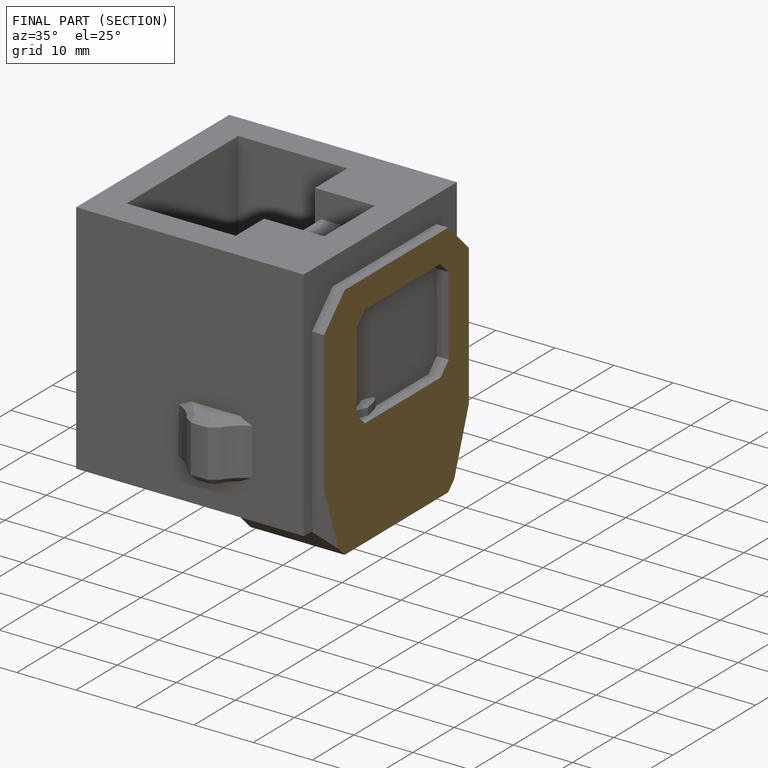
[diagram: finished part — half-section view (interior)]
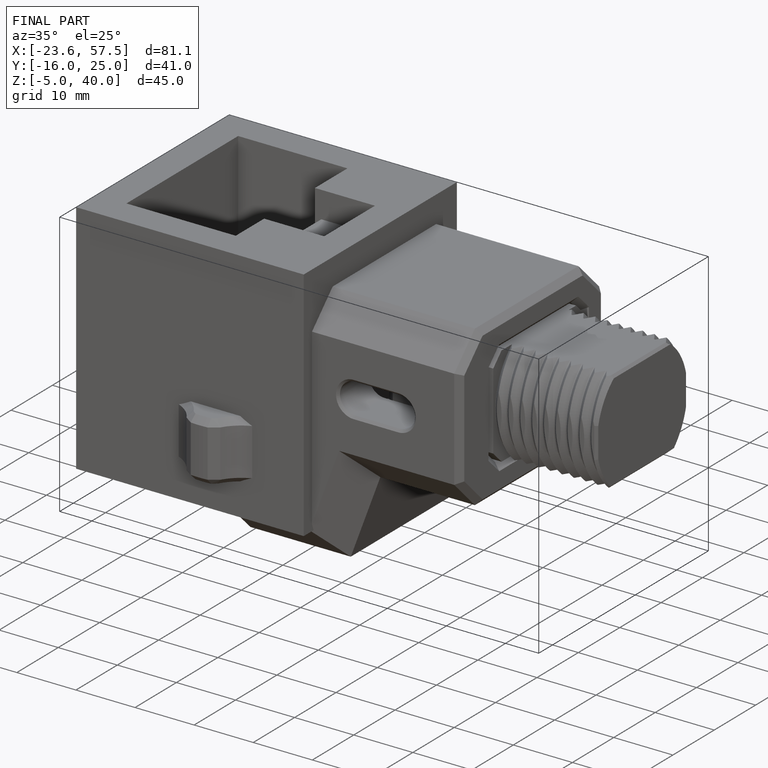
[diagram: finished part — iso view with bounding-box wireframe]
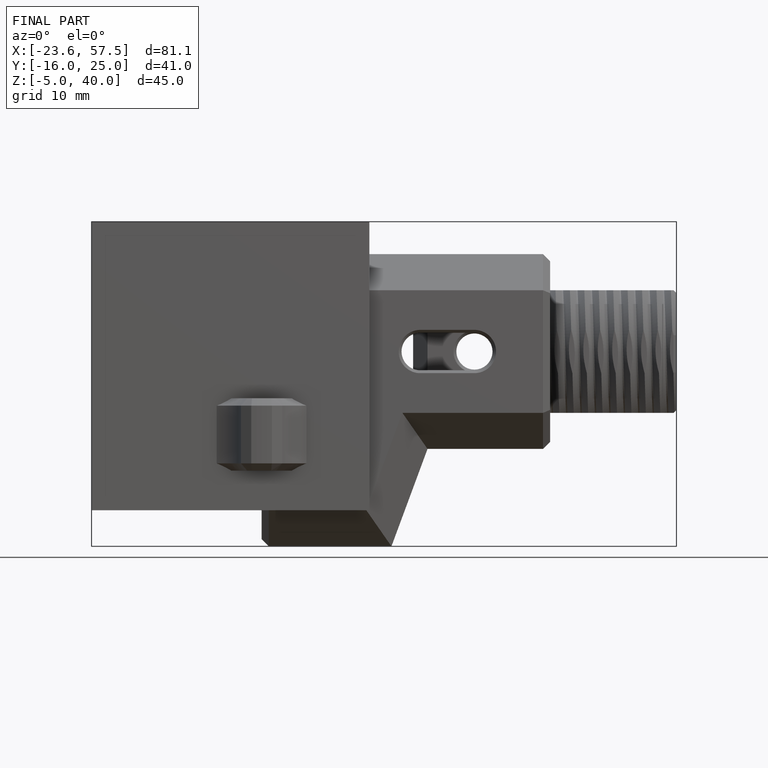
[diagram: finished part — front view with bounding-box wireframe]
